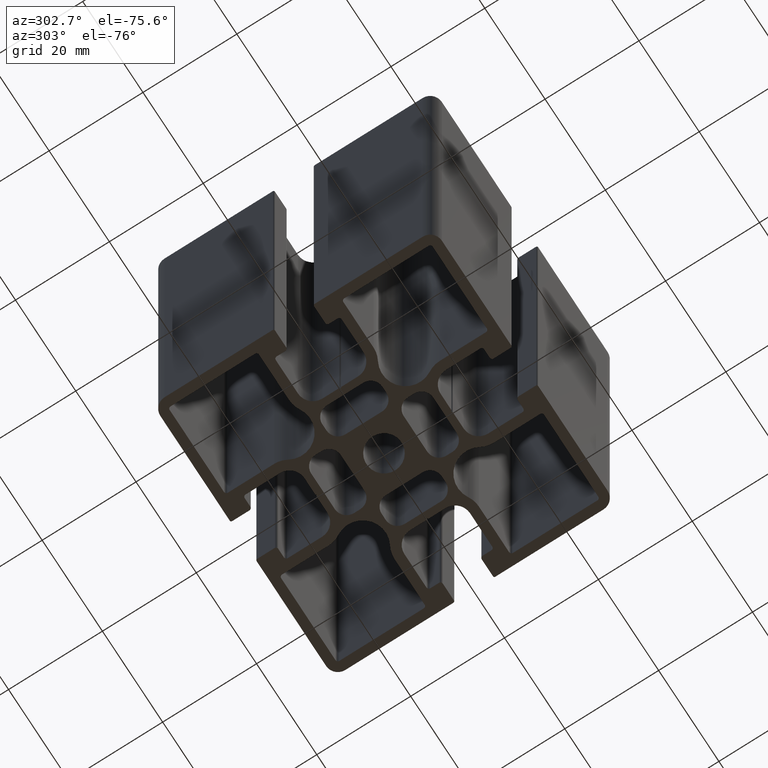
[diagram: clean part render]
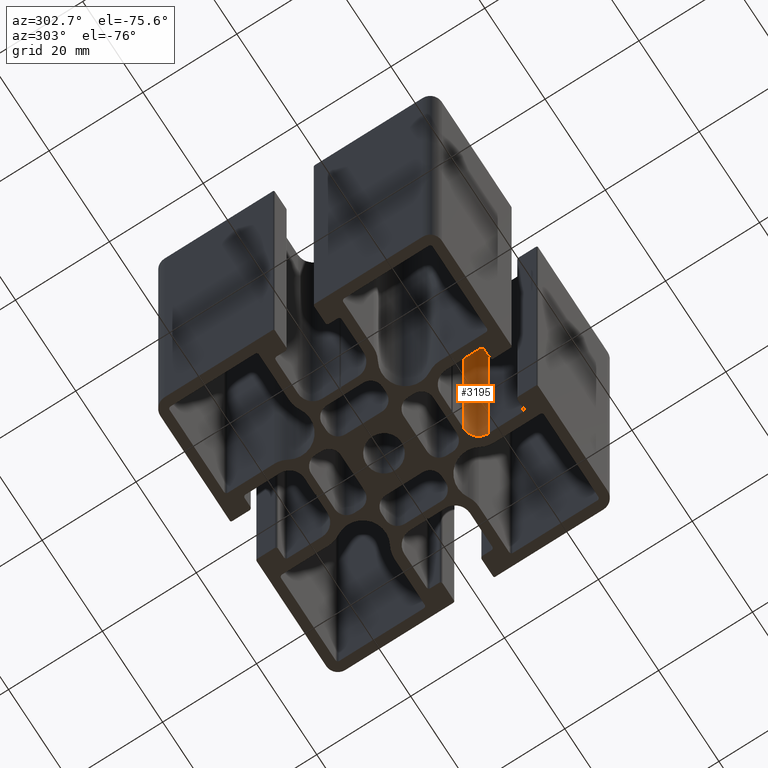
[diagram: same view with one face highlighted and labeled with its STEP entity id]
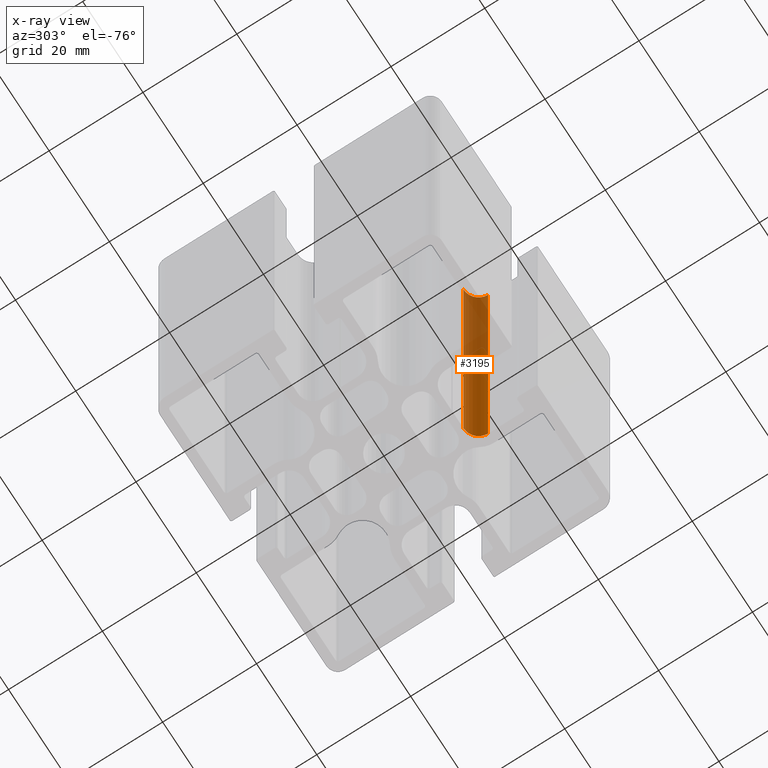
[diagram: x-ray of the same camera — body ghosted, the highlighted face saturated]
A machine part, auxiliary view. The second image highlights one B-rep face of the part: STEP entity #3195.
The next image is the same camera in x-ray: the body ghosted, the highlighted face saturated — about 41% of this face is hidden behind the body in this view.
In plain terms, the highlighted cylindrical surface (edge-blend (fillet) strip) has radius 3.2 mm, axis along (0, 0, 1).
Its self-contained STEP definition (entity closure, byte-faithful):
#186=CIRCLE('',#3509,3.2);
#187=CIRCLE('',#3510,3.2);
#264=CYLINDRICAL_SURFACE('',#3508,3.2);
#420=FACE_OUTER_BOUND('',#580,.T.);
#580=EDGE_LOOP('',(#2636,#2637,#2638,#2639));
#914=LINE('',#5390,#1230);
#915=LINE('',#5396,#1231);
#1230=VECTOR('',#4442,100.);
#1231=VECTOR('',#4449,100.);
#1544=VERTEX_POINT('',#5386);
#1545=VERTEX_POINT('',#5388);
#1546=VERTEX_POINT('',#5392);
#1547=VERTEX_POINT('',#5394);
#2012=EDGE_CURVE('',#1544,#1545,#914,.T.);
#2013=EDGE_CURVE('',#1544,#1546,#186,.T.);
#2014=EDGE_CURVE('',#1547,#1545,#187,.T.);
#2015=EDGE_CURVE('',#1546,#1547,#915,.T.);
#2636=ORIENTED_EDGE('',*,*,#2013,.F.);
#2637=ORIENTED_EDGE('',*,*,#2012,.T.);
#2638=ORIENTED_EDGE('',*,*,#2014,.F.);
#2639=ORIENTED_EDGE('',*,*,#2015,.F.);
#3195=ADVANCED_FACE('',(#420),#264,.F.);
#3508=AXIS2_PLACEMENT_3D('',#5391,#4443,#4444);
#3509=AXIS2_PLACEMENT_3D('',#5393,#4445,#4446);
#3510=AXIS2_PLACEMENT_3D('',#5395,#4447,#4448);
#4442=DIRECTION('',(0.,0.,1.));
#4443=DIRECTION('center_axis',(0.,0.,1.));
#4444=DIRECTION('ref_axis',(1.,0.,0.));
#4445=DIRECTION('center_axis',(0.,0.,1.));
#4446=DIRECTION('ref_axis',(1.,0.,0.));
#4447=DIRECTION('center_axis',(0.,0.,-1.));
#4448=DIRECTION('ref_axis',(1.,0.,0.));
#4449=DIRECTION('',(0.,0.,1.));
#5386=CARTESIAN_POINT('',(7.00000000000019,-17.7,0.));
#5388=CARTESIAN_POINT('',(7.00000000000019,-17.7,100.));
#5390=CARTESIAN_POINT('',(7.00000000000019,-17.7,0.));
#5391=CARTESIAN_POINT('Origin',(3.80000000000017,-17.7,0.));
#5392=CARTESIAN_POINT('',(3.8000000000002,-14.5,0.));
#5393=CARTESIAN_POINT('Origin',(3.80000000000017,-17.7,0.));
#5394=CARTESIAN_POINT('',(3.8000000000002,-14.5,100.));
#5395=CARTESIAN_POINT('Origin',(3.80000000000017,-17.7,100.));
#5396=CARTESIAN_POINT('',(3.8000000000002,-14.5,0.));